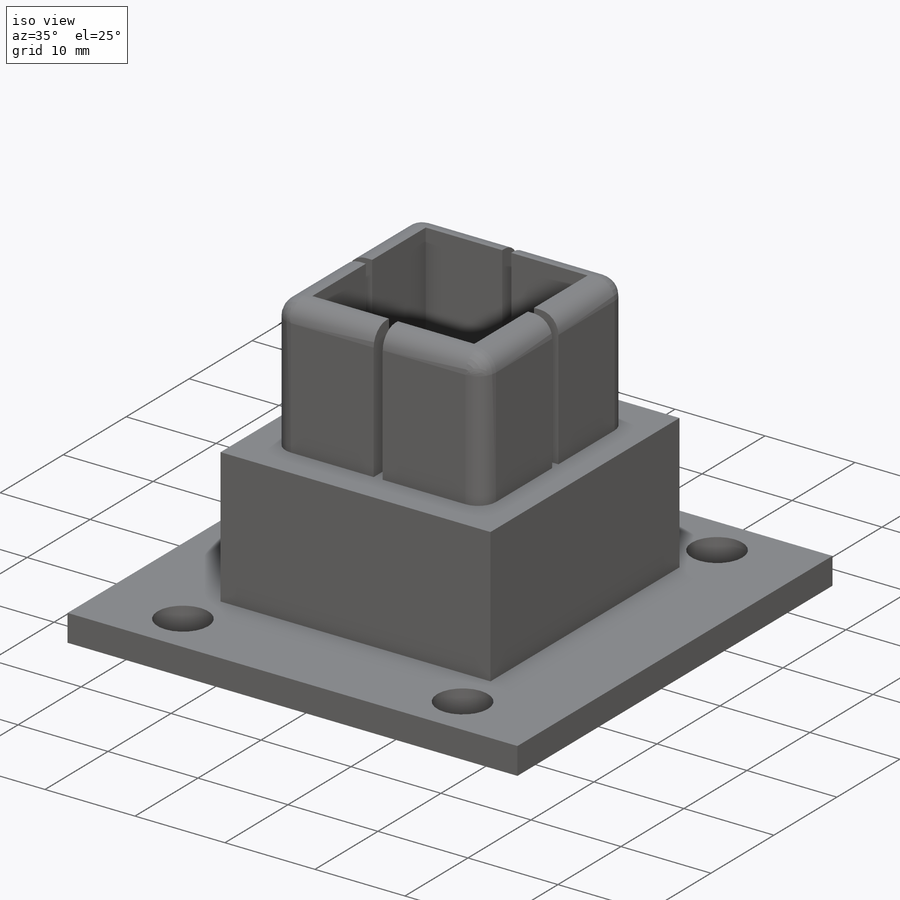
[diagram: iso view]
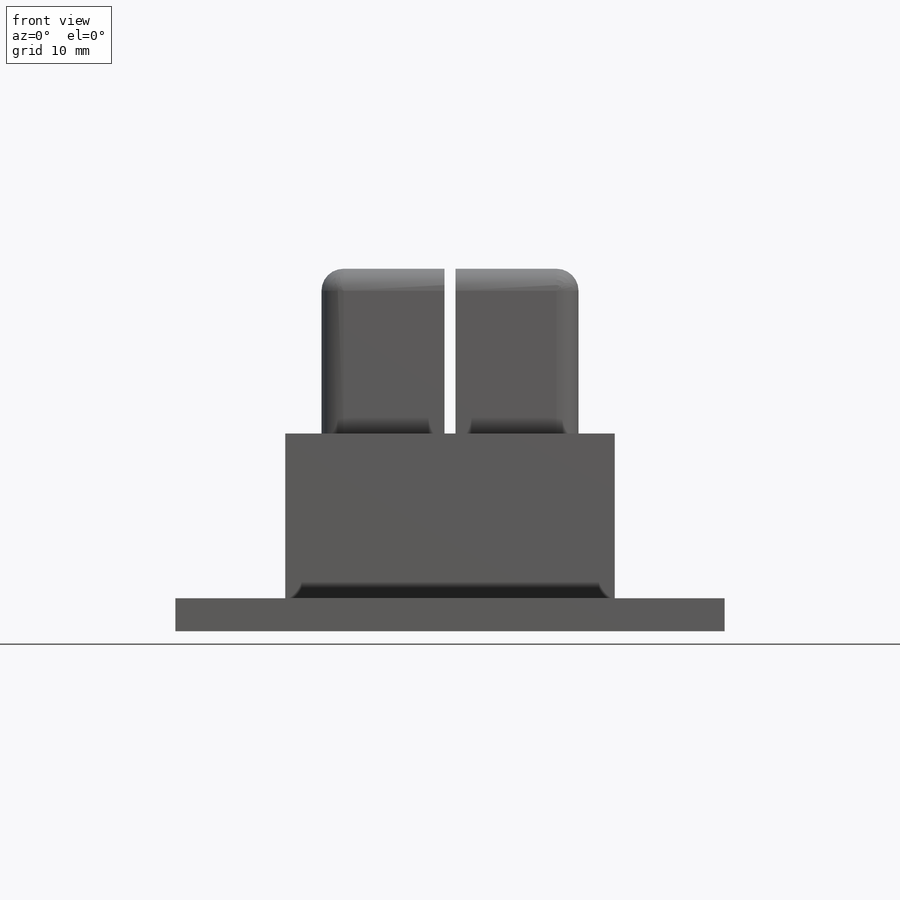
[diagram: front view]
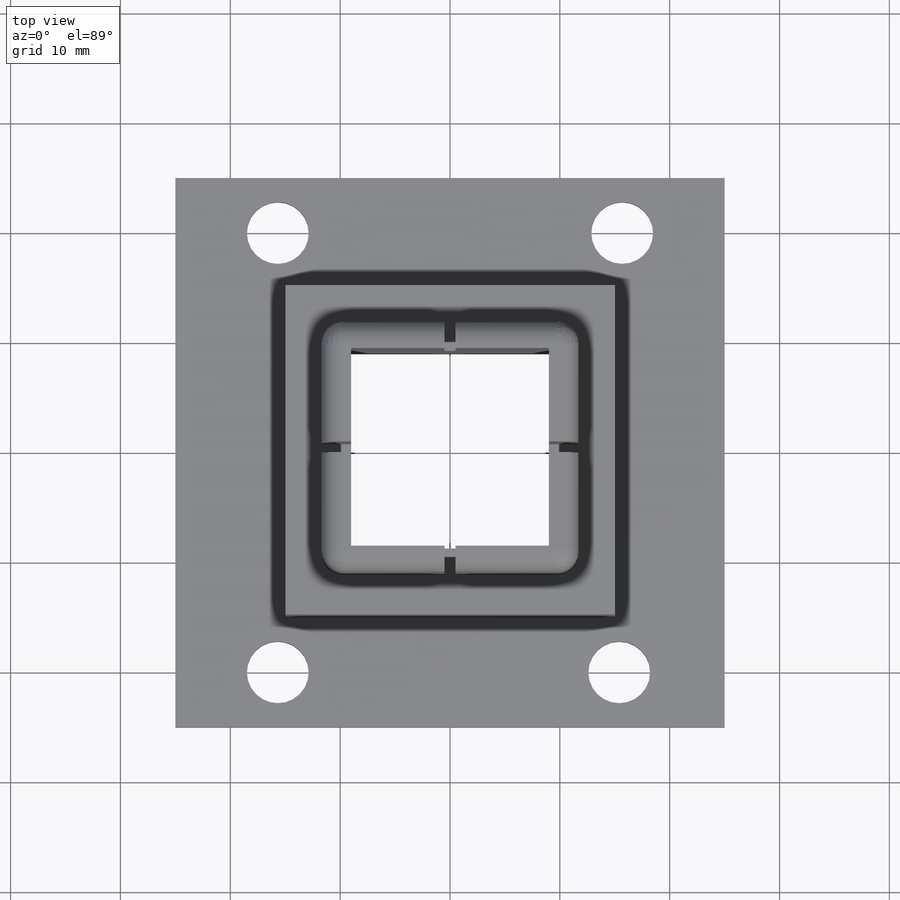
[diagram: top view]
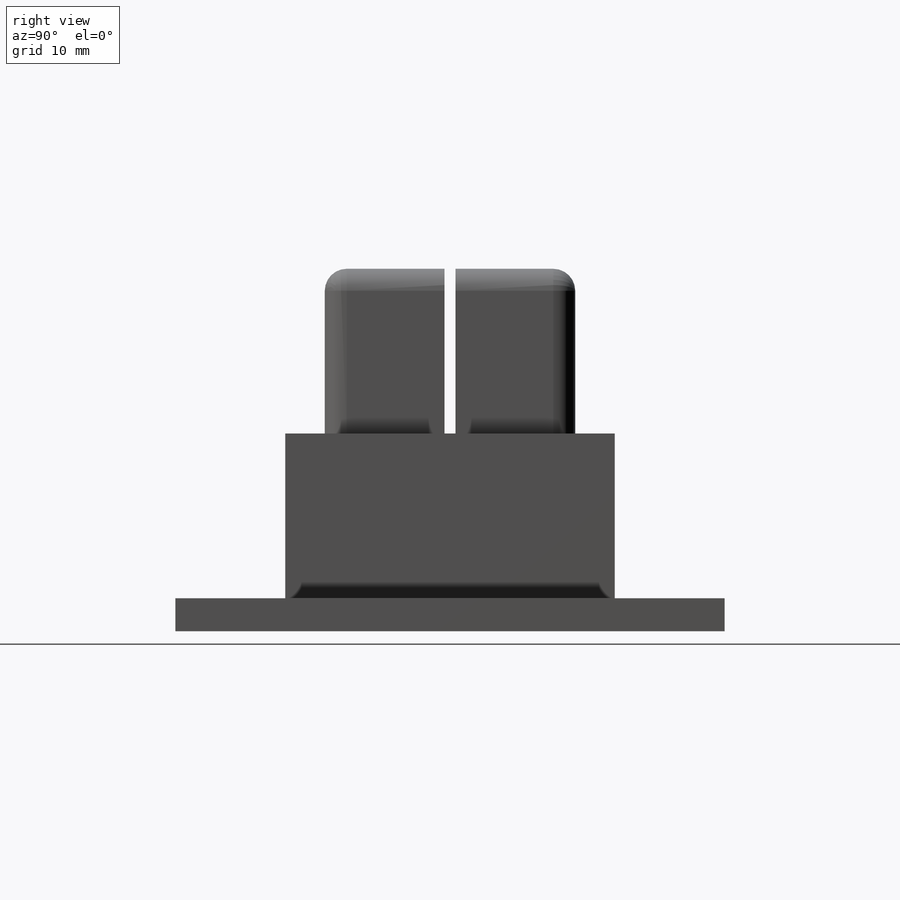
[diagram: right view]
SOLIDWORKS PART (.sldprt)
format: sldprt  version: not decoded by parser v0  size: 289,280 bytes
history: native  units: mm
features: sketch x7, cut_extrude x5, plane x3, extrude x2, material x1, fillet x1 (+8 scaffold rows collapsed)
feature tree (27):
  scaffold x8  (default folders/planes/origin — collapsed)
  material  "Material <sin especificar>"
  plane  "Alzado"
  plane  "Planta"
  plane  "Vista lateral"
  sketch  "Croquis1"  dims[D1=50.0mm D2=50.0mm]
  extrude  "Saliente-Extruir1"  Depth=3mm
  sketch  "Croquis2"  dims[D1=30.0mm D2=30.0mm D3=6.0mm]
  extrude  "Saliente-Extruir2"  Depth=30mm
  sketch  "Croquis3"
  cut_extrude  "Cortar-Extruir1"  Depth=10mm
  sketch  "Croquis4"  dims[c1.D1=2.6mm c1.D2=30.0mm c2.D1=3.3mm c2.D2=3.6mm]
  cut_extrude  "Cortar-Extruir2"  Depth=15mm
  fillet  "Redondeo1"  Radius=2mm
  sketch  "Croquis5"
  cut_extrude  "Cortar-Extruir3"  Depth=2mm
  sketch  "Croquis6"  dims[D1=1.0mm]
  cut_extrude  "Cortar-Extruir4"  [1 undecoded]
  sketch  "Croquis7"  dims[D1=1.0mm]
  cut_extrude  "Cortar-Extruir5"  [1 undecoded]
decode coverage: 11 of 15 modeling features carry decoded parameters
note: 2 parameter values undecoded
note: suppression state not decoded; provenance and decode notes live in map.json
